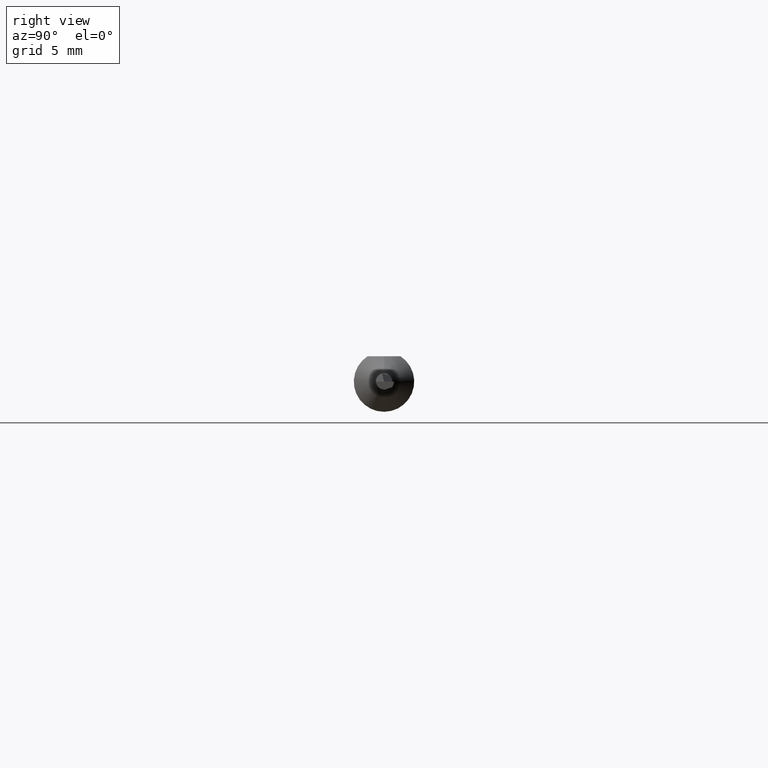
[diagram: clean part render]
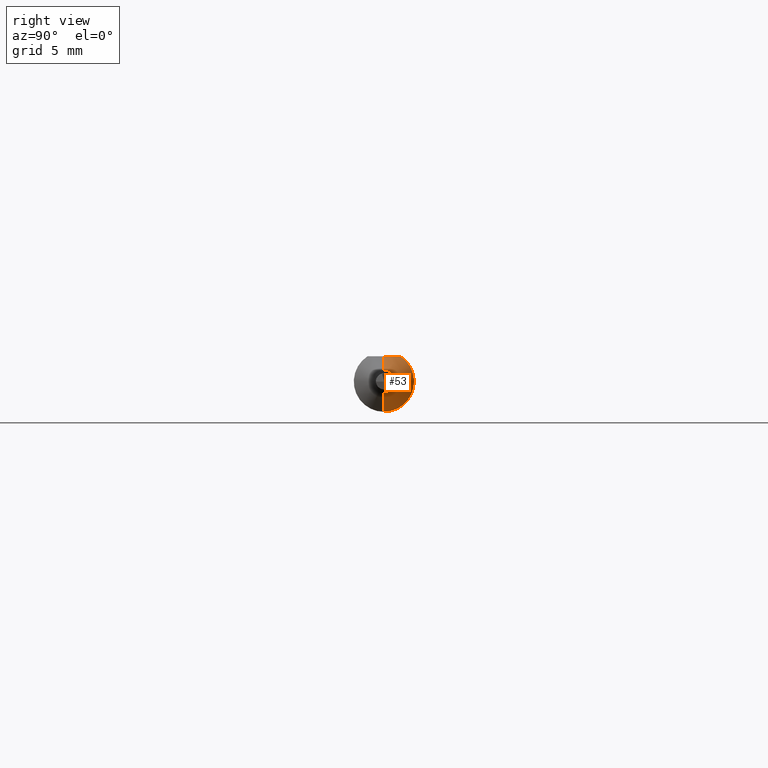
[diagram: same view with one face highlighted and labeled with its STEP entity id]
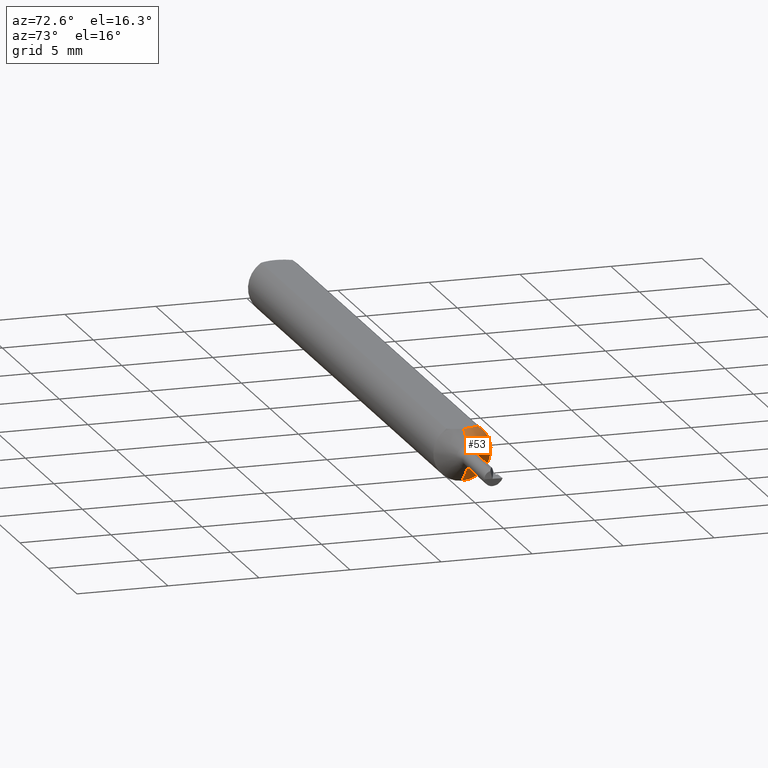
[diagram: same view with one face highlighted and labeled with its STEP entity id]
A machine part, right view. The second image highlights one B-rep face of the part: STEP entity #53.
A second angle (auxiliary view) of the same face is appended — the face is thin or edge-on in the first view.
In plain terms, the highlighted conical surface has half-angle 45 deg.
Its self-contained STEP definition (entity closure, byte-faithful):
#5 = CARTESIAN_POINT ( 'NONE',  ( 1.299150000000000249, -2.188243502173987421E-21, 0.05235000000000001458 ) ) ;
#38 = CARTESIAN_POINT ( 'NONE',  ( 1.327677669529663929, 0.000000000000000000, 0.02382233047033643566 ) ) ;
#53 = ADVANCED_FACE ( 'NONE', ( #486 ), #432, .T. ) ;
#89 = AXIS2_PLACEMENT_3D ( 'NONE', #473, #370, #206 ) ;
#123 = CARTESIAN_POINT ( 'NONE',  ( 1.327677669529663929, 0.000000000000000000, 0.000000000000000000 ) ) ;
#133 = ORIENTED_EDGE ( 'NONE', *, *, #390, .T. ) ;
#138 = CARTESIAN_POINT ( 'NONE',  ( 1.327677669529663929, 2.917394075872797303E-18, -0.02382233047033643566 ) ) ;
#160 = CARTESIAN_POINT ( 'NONE',  ( 1.289150000000000462, 7.635672792683746671E-18, -0.06235000000000000264 ) ) ;
#163 = CARTESIAN_POINT ( 'NONE',  ( 1.299150000000000249, -2.188243502173987421E-21, 0.05235000000000001458 ) ) ;
#181 = CARTESIAN_POINT ( 'NONE',  ( 1.327677669529663929, 2.917394075872812325E-18, -0.02382233047033655710 ) ) ;
#182 = EDGE_CURVE ( 'NONE', #640, #401, #676, .T. ) ;
#203 = CARTESIAN_POINT ( 'NONE',  ( 1.289150000000000462, 0.03386738844375220686, 0.05235000000000000070 ) ) ;
#206 = DIRECTION ( 'NONE',  ( 0.000000000000000000, 0.000000000000000000, 1.000000000000000000 ) ) ;
#254 = EDGE_CURVE ( 'NONE', #673, #368, #557, .T. ) ;
#268 = VECTOR ( 'NONE', #610, 39.37007874015748143 ) ;
#277 = EDGE_CURVE ( 'NONE', #483, #401, #487, .T. ) ;
#293 = EDGE_LOOP ( 'NONE', ( #133, #699, #480, #308, #426 ) ) ;
#308 = ORIENTED_EDGE ( 'NONE', *, *, #277, .T. ) ;
#323 = AXIS2_PLACEMENT_3D ( 'NONE', #441, #544, #603 ) ;
#326 = DIRECTION ( 'NONE',  ( -1.000000000000000000, -0.000000000000000000, -0.000000000000000000 ) ) ;
#331 = VECTOR ( 'NONE', #511, 39.37007874015748143 ) ;
#334 = DIRECTION ( 'NONE',  ( 0.000000000000000000, 0.000000000000000000, 1.000000000000000000 ) ) ;
#368 = VERTEX_POINT ( 'NONE', #160 ) ;
#370 = DIRECTION ( 'NONE',  ( -1.000000000000000000, -0.000000000000000000, -0.000000000000000000 ) ) ;
#378 = CARTESIAN_POINT ( 'NONE',  ( 1.298078676938162701, 0.01191467125359133884, 0.05235000000000001458 ) ) ;
#390 = EDGE_CURVE ( 'NONE', #640, #673, #558, .T. ) ;
#401 = VERTEX_POINT ( 'NONE', #5 ) ;
#413 = CARTESIAN_POINT ( 'NONE',  ( 1.294488220844932647, 0.02320483992252780209, 0.05235000000000002152 ) ) ;
#425 = CARTESIAN_POINT ( 'NONE',  ( 1.299150000000000471, 0.005920875246928958106, 0.05235000000000002152 ) ) ;
#426 = ORIENTED_EDGE ( 'NONE', *, *, #182, .F. ) ;
#432 = CONICAL_SURFACE ( 'NONE', #641, 0.02382233047033655710, 0.7853981633974463916 ) ;
#437 = CARTESIAN_POINT ( 'NONE',  ( 1.289150000000000462, 0.03386738844375220686, 0.05235000000000000070 ) ) ;
#440 = EDGE_CURVE ( 'NONE', #483, #368, #654, .T. ) ;
#441 = CARTESIAN_POINT ( 'NONE',  ( 1.289150000000000462, 0.000000000000000000, 0.000000000000000000 ) ) ;
#473 = CARTESIAN_POINT ( 'NONE',  ( 1.327677669529663929, 0.000000000000000000, 0.000000000000000000 ) ) ;
#480 = ORIENTED_EDGE ( 'NONE', *, *, #440, .F. ) ;
#483 = VERTEX_POINT ( 'NONE', #437 ) ;
#486 = FACE_OUTER_BOUND ( 'NONE', #293, .T. ) ;
#487 = B_SPLINE_CURVE_WITH_KNOTS ( 'NONE', 3,
 ( #203, #525, #413, #378, #425, #163 ),
 .UNSPECIFIED., .F., .F.,
 ( 4, 2, 4 ),
 ( 0.002053575827796387619, 0.002502514900742342646, 0.002951453973688297674 ),
 .UNSPECIFIED. ) ;
#511 = DIRECTION ( 'NONE',  ( -0.7071067811865489050, 0.000000000000000000, 0.7071067811865461294 ) ) ;
#525 = CARTESIAN_POINT ( 'NONE',  ( 1.291993063989529400, 0.02863329606483937598, 0.05235000000000002152 ) ) ;
#544 = DIRECTION ( 'NONE',  ( -1.000000000000000000, -0.000000000000000000, -0.000000000000000000 ) ) ;
#557 = LINE ( 'NONE', #181, #268 ) ;
#558 = CIRCLE ( 'NONE', #89, 0.02382233047033655710 ) ;
#567 = CARTESIAN_POINT ( 'NONE',  ( 1.327677669529663929, 0.000000000000000000, 0.02382233047033655710 ) ) ;
#603 = DIRECTION ( 'NONE',  ( 0.000000000000000000, 0.000000000000000000, 1.000000000000000000 ) ) ;
#610 = DIRECTION ( 'NONE',  ( -0.7071067811865489050, 8.659560562354915602E-17, -0.7071067811865461294 ) ) ;
#640 = VERTEX_POINT ( 'NONE', #38 ) ;
#641 = AXIS2_PLACEMENT_3D ( 'NONE', #123, #326, #334 ) ;
#654 = CIRCLE ( 'NONE', #323, 0.06235000000000000264 ) ;
#673 = VERTEX_POINT ( 'NONE', #138 ) ;
#676 = LINE ( 'NONE', #567, #331 ) ;
#699 = ORIENTED_EDGE ( 'NONE', *, *, #254, .T. ) ;